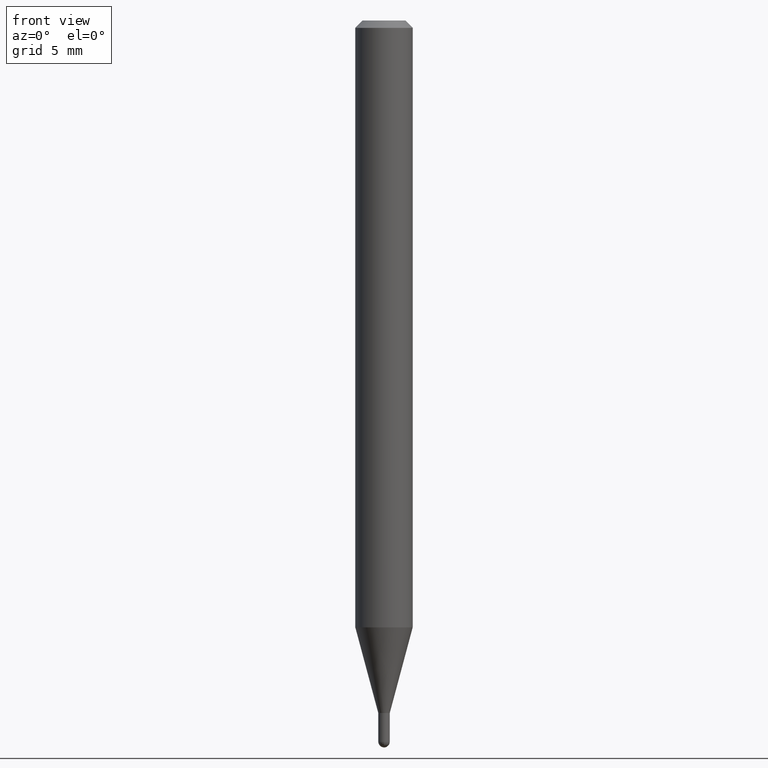
[diagram: clean part render]
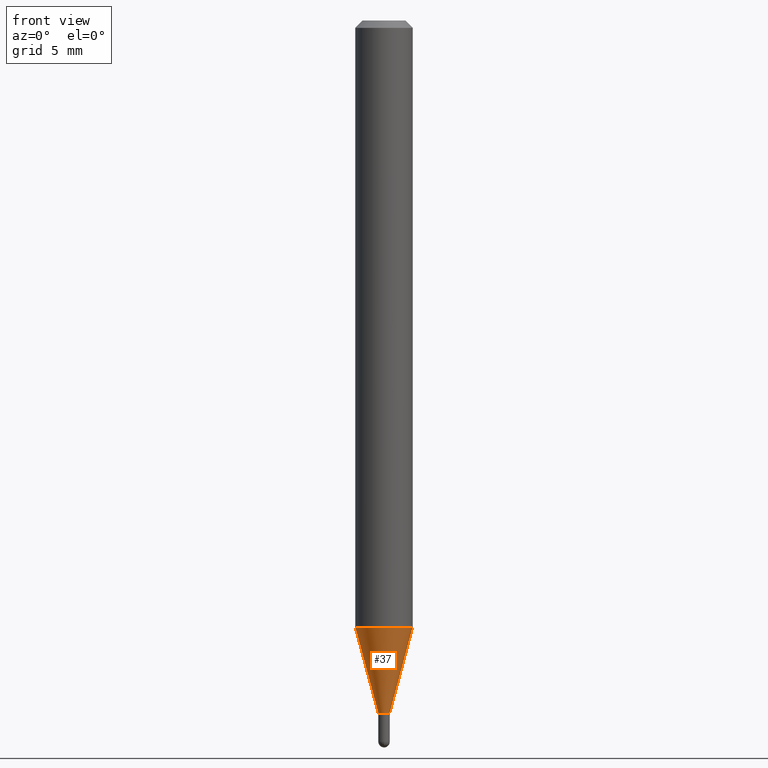
[diagram: same view with one face highlighted and labeled with its STEP entity id]
A machine part, front view. The second image highlights one B-rep face of the part: STEP entity #37.
In plain terms, the highlighted conical surface has half-angle 15 deg.
Its self-contained STEP definition (entity closure, byte-faithful):
#7 = DIRECTION ( 'NONE',  ( -0.2588190451025286776, 5.211531920934595218E-15, 0.9659258262890662028 ) ) ;
#24 = LINE ( 'NONE', #485, #286 ) ;
#37 = ADVANCED_FACE ( 'NONE', ( #166 ), #276, .T. ) ;
#44 = EDGE_LOOP ( 'NONE', ( #215, #510, #471, #259 ) ) ;
#46 = VERTEX_POINT ( 'NONE', #250 ) ;
#48 = AXIS2_PLACEMENT_3D ( 'NONE', #410, #172, #138 ) ;
#68 = CARTESIAN_POINT ( 'NONE',  ( 3.054049638965451471E-29, -4.360373477420368492E-15, -1.248860599342374922 ) ) ;
#70 = EDGE_CURVE ( 'NONE', #114, #229, #24, .T. ) ;
#84 = EDGE_CURVE ( 'NONE', #148, #229, #450, .T. ) ;
#114 = VERTEX_POINT ( 'NONE', #467 ) ;
#138 = DIRECTION ( 'NONE',  ( 1.000000000000000000, -6.982962677686258033E-15, 0.000000000000000000 ) ) ;
#148 = VERTEX_POINT ( 'NONE', #381 ) ;
#166 = FACE_OUTER_BOUND ( 'NONE', #44, .T. ) ;
#167 = CARTESIAN_POINT ( 'NONE',  ( 3.485282142575056435E-29, -4.976059204119250988E-15, -1.425199999999999800 ) ) ;
#170 = EDGE_CURVE ( 'NONE', #46, #148, #474, .T. ) ;
#172 = DIRECTION ( 'NONE',  ( -2.445468806185136597E-29, 3.491481338843145583E-15, 1.000000000000000000 ) ) ;
#176 = DIRECTION ( 'NONE',  ( 0.2588190451025286776, 1.565188264969564184E-15, 0.9659258262890662028 ) ) ;
#181 = DIRECTION ( 'NONE',  ( -2.445468806185136597E-29, 3.491481338843145583E-15, 1.000000000000000000 ) ) ;
#188 = DIRECTION ( 'NONE',  ( 1.000000000000000000, -6.982962677686265133E-15, 0.000000000000000000 ) ) ;
#215 = ORIENTED_EDGE ( 'NONE', *, *, #170, .F. ) ;
#229 = VERTEX_POINT ( 'NONE', #313 ) ;
#230 = VECTOR ( 'NONE', #7, 39.37007874015748143 ) ;
#250 = CARTESIAN_POINT ( 'NONE',  ( -0.01179999999999965278, -4.416506576626794755E-15, -1.425199999999999800 ) ) ;
#259 = ORIENTED_EDGE ( 'NONE', *, *, #84, .F. ) ;
#276 = CONICAL_SURFACE ( 'NONE', #48, 0.01179999999999965278, 0.2617993877991576235 ) ;
#278 = CARTESIAN_POINT ( 'NONE',  ( -0.01179999999999965278, -4.892215161299561300E-15, -1.425199999999999800 ) ) ;
#286 = VECTOR ( 'NONE', #176, 39.37007874015748143 ) ;
#291 = EDGE_CURVE ( 'NONE', #46, #114, #394, .T. ) ;
#313 = CARTESIAN_POINT ( 'NONE',  ( 0.05904999999999999138, -4.772717423537742623E-15, -1.248860599342374922 ) ) ;
#324 = DIRECTION ( 'NONE',  ( -2.445468806185136597E-29, 3.491481338843145583E-15, 1.000000000000000000 ) ) ;
#372 = DIRECTION ( 'NONE',  ( 1.000000000000000000, -6.982962677686258033E-15, 0.000000000000000000 ) ) ;
#381 = CARTESIAN_POINT ( 'NONE',  ( -0.05904999999999999138, -3.940797991954028999E-15, -1.248860599342374922 ) ) ;
#394 = CIRCLE ( 'NONE', #442, 0.01179999999999965278 ) ;
#410 = CARTESIAN_POINT ( 'NONE',  ( 3.485282142575056435E-29, -4.976059204119250988E-15, -1.425199999999999800 ) ) ;
#442 = AXIS2_PLACEMENT_3D ( 'NONE', #167, #324, #372 ) ;
#450 = CIRCLE ( 'NONE', #478, 0.05904999999999999832 ) ;
#467 = CARTESIAN_POINT ( 'NONE',  ( 0.01179999999999965278, -5.058458163715945956E-15, -1.425199999999999800 ) ) ;
#471 = ORIENTED_EDGE ( 'NONE', *, *, #70, .T. ) ;
#474 = LINE ( 'NONE', #278, #230 ) ;
#478 = AXIS2_PLACEMENT_3D ( 'NONE', #68, #181, #188 ) ;
#485 = CARTESIAN_POINT ( 'NONE',  ( 0.01179999999999965278, -5.058458163715945956E-15, -1.425199999999999800 ) ) ;
#510 = ORIENTED_EDGE ( 'NONE', *, *, #291, .T. ) ;